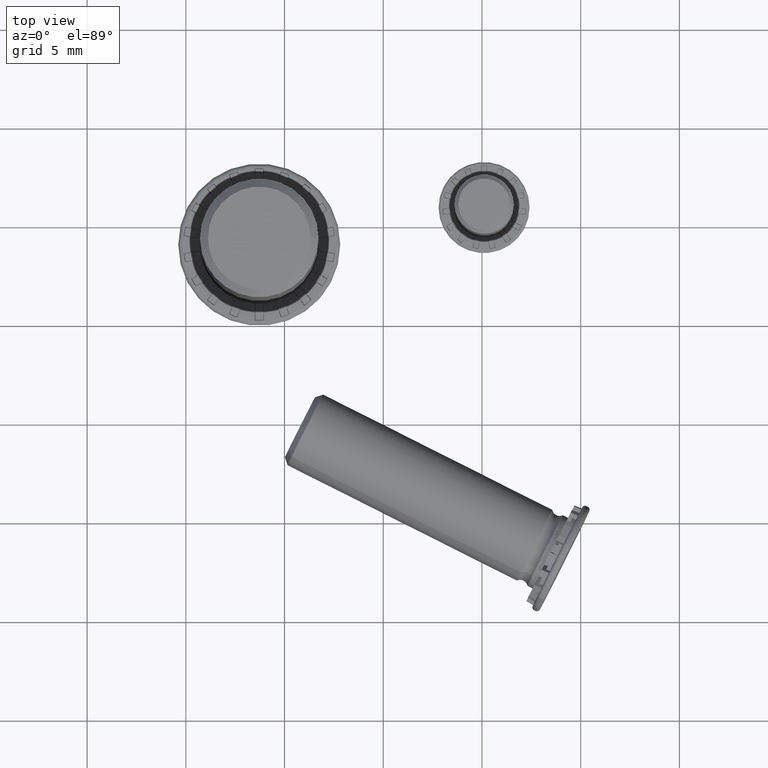
[diagram: clean part render]
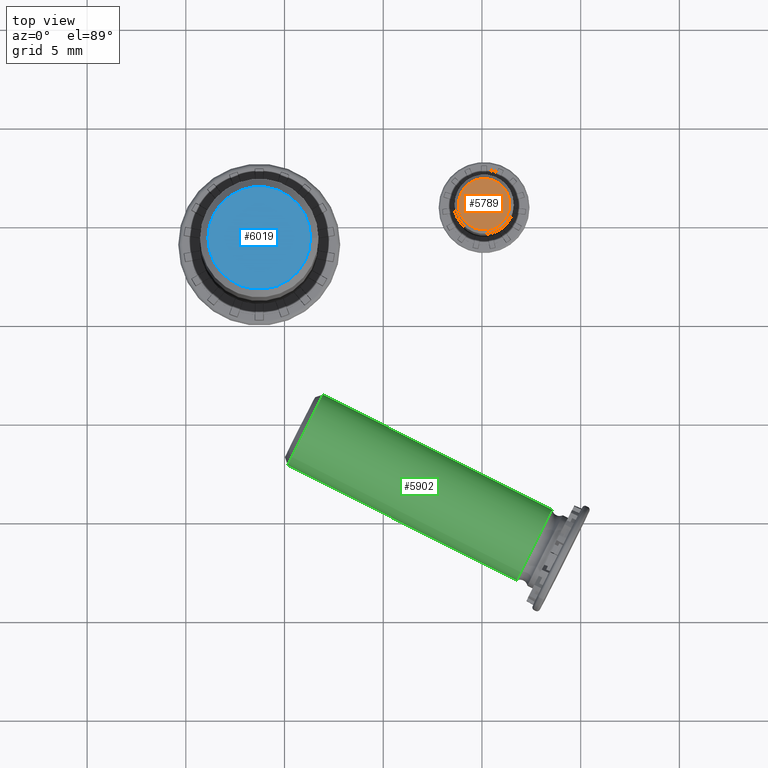
[diagram: same view with three faces highlighted in distinct colors, each labeled with its STEP entity id]
A machine part, top view with three faces highlighted in distinct colors.
Their STEP definitions:

[orange] entity #5789 — the highlighted planar face has unit normal (0, 0, 1).
#222=CIRCLE('',#6275,1.3);
#600=FACE_OUTER_BOUND('',#932,.T.);
#932=EDGE_LOOP('',(#4123));
#2273=VERTEX_POINT('',#9520);
#2987=EDGE_CURVE('',#2273,#2273,#222,.T.);
#4123=ORIENTED_EDGE('',*,*,#2987,.F.);
#5548=PLANE('',#6277);
#5789=ADVANCED_FACE('',(#600),#5548,.T.);
#6275=AXIS2_PLACEMENT_3D('',#9521,#7472,#7473);
#6277=AXIS2_PLACEMENT_3D('',#9524,#7476,#7477);
#7472=DIRECTION('center_axis',(-2.77555756156289E-16,0.,-1.));
#7473=DIRECTION('ref_axis',(1.,0.,-2.77555756156289E-16));
#7476=DIRECTION('center_axis',(2.77555756156289E-16,0.,1.));
#7477=DIRECTION('ref_axis',(1.,0.,0.));
#9520=CARTESIAN_POINT('',(-1.3,1.59204083889156E-16,10.));
#9521=CARTESIAN_POINT('Origin',(2.77555756156289E-15,0.,10.));
#9524=CARTESIAN_POINT('Origin',(-0.749999999999997,0.,10.));

[blue] entity #6019 — the highlighted planar face has unit normal (-0, -0, 1).
#448=CIRCLE('',#6873,2.6);
#830=FACE_OUTER_BOUND('',#1178,.T.);
#1178=EDGE_LOOP('',(#5403));
#2709=VERTEX_POINT('',#10974);
#3633=EDGE_CURVE('',#2709,#2709,#448,.T.);
#5403=ORIENTED_EDGE('',*,*,#3633,.F.);
#5694=PLANE('',#6875);
#6019=ADVANCED_FACE('',(#830),#5694,.T.);
#6873=AXIS2_PLACEMENT_3D('',#10975,#8878,#8879);
#6875=AXIS2_PLACEMENT_3D('',#10978,#8882,#8883);
#8878=DIRECTION('center_axis',(-3.05311331771918E-16,0.,-1.));
#8879=DIRECTION('ref_axis',(1.,0.,-3.05311331771918E-16));
#8882=DIRECTION('center_axis',(3.05311331771918E-16,0.,1.));
#8883=DIRECTION('ref_axis',(1.,0.,0.));
#10974=CARTESIAN_POINT('',(-2.6,3.18408167778312E-16,20.));
#10975=CARTESIAN_POINT('Origin',(6.10622663543836E-15,0.,20.));
#10978=CARTESIAN_POINT('Origin',(-1.5,0.,20.));

[green] entity #5902 — the highlighted cylindrical surface (bore or boss wall) has radius 2 mm, axis along (0.8933, -0.4494, 0.001).
#57=FACE_BOUND('',#1054,.T.);
#107=CYLINDRICAL_SURFACE('',#6569,2.);
#333=CIRCLE('',#6567,2.);
#334=CIRCLE('',#6570,2.);
#713=FACE_OUTER_BOUND('',#1053,.T.);
#1053=EDGE_LOOP('',(#4744));
#1054=EDGE_LOOP('',(#4745));
#2486=VERTEX_POINT('',#10229);
#2487=VERTEX_POINT('',#10233);
#3302=EDGE_CURVE('',#2486,#2486,#333,.T.);
#3303=EDGE_CURVE('',#2487,#2487,#334,.T.);
#4744=ORIENTED_EDGE('',*,*,#3302,.F.);
#4745=ORIENTED_EDGE('',*,*,#3303,.F.);
#5902=ADVANCED_FACE('',(#713,#57),#107,.T.);
#6567=AXIS2_PLACEMENT_3D('',#10230,#8158,#8159);
#6569=AXIS2_PLACEMENT_3D('',#10232,#8162,#8163);
#6570=AXIS2_PLACEMENT_3D('',#10234,#8164,#8165);
#8158=DIRECTION('center_axis',(2.96059473233375E-16,0.,1.));
#8159=DIRECTION('ref_axis',(1.,0.,-2.96059473233375E-16));
#8162=DIRECTION('center_axis',(-2.96059473233375E-16,0.,-1.));
#8163=DIRECTION('ref_axis',(-1.,0.,2.96059473233375E-16));
#8164=DIRECTION('center_axis',(-2.96059473233375E-16,0.,-1.));
#8165=DIRECTION('ref_axis',(-1.,0.,2.96059473233375E-16));
#10229=CARTESIAN_POINT('',(2.,-2.44929359829471E-16,14.7));
#10230=CARTESIAN_POINT('Origin',(4.35207425653061E-15,0.,14.7));
#10232=CARTESIAN_POINT('Origin',(6.06921920128419E-16,0.,2.05));
#10233=CARTESIAN_POINT('',(2.,-2.44929359829471E-16,1.7));
#10234=CARTESIAN_POINT('Origin',(5.03301104496737E-16,0.,1.7));